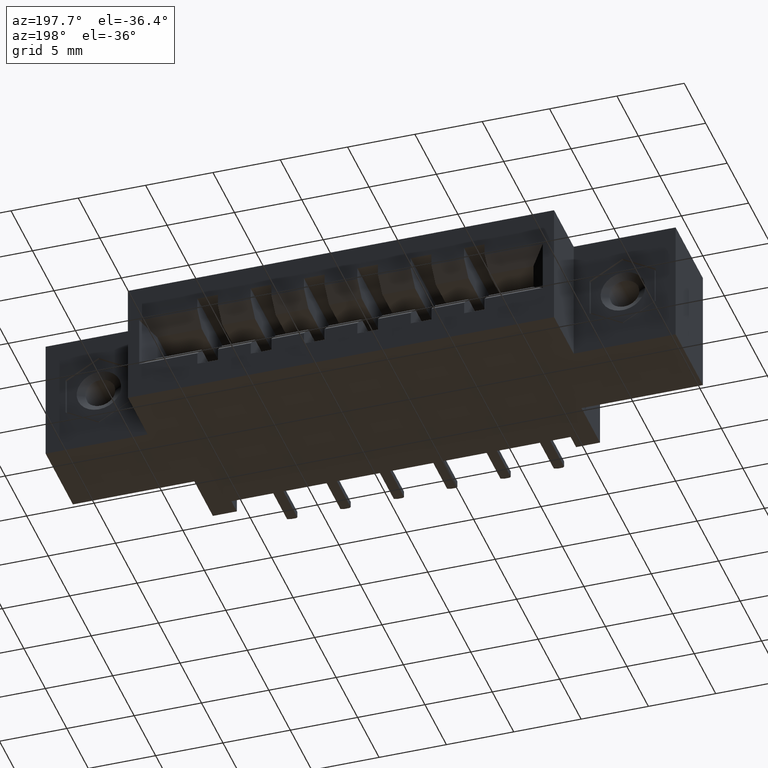
[diagram: clean part render]
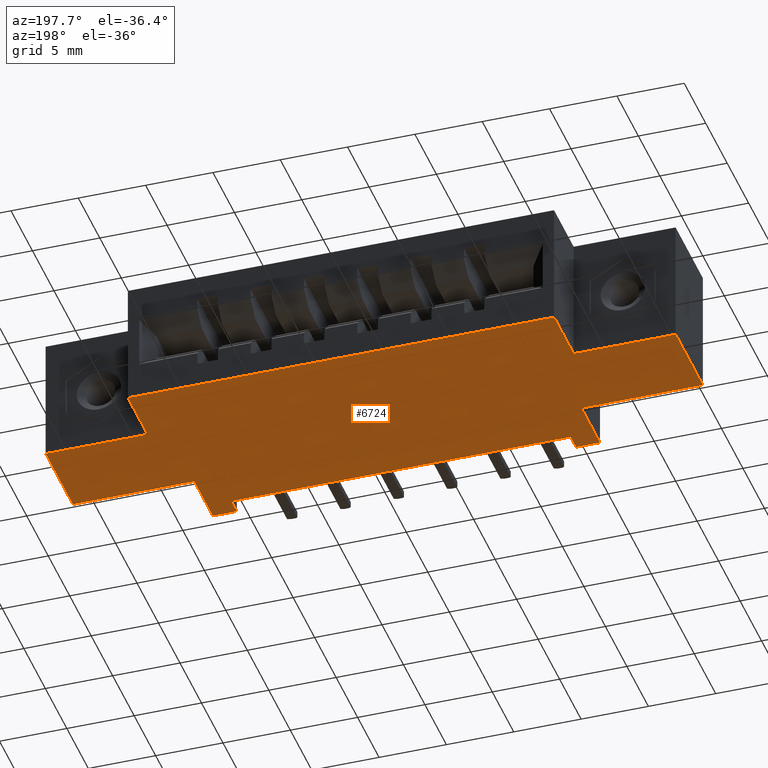
[diagram: same view with one face highlighted and labeled with its STEP entity id]
A machine part, auxiliary view. The second image highlights one B-rep face of the part: STEP entity #6724.
In plain terms, the highlighted planar face has unit normal (-0, 0, 1).
Its self-contained STEP definition (entity closure, byte-faithful):
#151 = VECTOR ( 'NONE', #7895, 39.37007874015748100 ) ;
#337 = EDGE_CURVE ( 'NONE', #8585, #6396, #6905, .T. ) ;
#508 = VECTOR ( 'NONE', #5805, 39.37007874015748100 ) ;
#598 = VERTEX_POINT ( 'NONE', #996 ) ;
#934 = LINE ( 'NONE', #4451, #9978 ) ;
#941 = ORIENTED_EDGE ( 'NONE', *, *, #8156, .F. ) ;
#996 = CARTESIAN_POINT ( 'NONE',  ( 1.544000000000000700, 0.5999999999999999800, -0.3699999999999999400 ) ) ;
#1090 = CARTESIAN_POINT ( 'NONE',  ( 1.487000000000000800, 0.1699999999999999800, -0.3699999999999998800 ) ) ;
#1165 = CARTESIAN_POINT ( 'NONE',  ( 0.0000000000000000000, 0.4199999999999999800, -0.3700000000000001600 ) ) ;
#1244 = VECTOR ( 'NONE', #4199, 39.37007874015748100 ) ;
#1310 = VECTOR ( 'NONE', #9368, 39.37007874015748100 ) ;
#1456 = FACE_OUTER_BOUND ( 'NONE', #3490, .T. ) ;
#1529 = CARTESIAN_POINT ( 'NONE',  ( 0.4249999999999999900, 0.05000000000000000300, -0.3700000000000000000 ) ) ;
#1551 = DIRECTION ( 'NONE',  ( -0.0000000000000000000, -1.000000000000000000, -0.0000000000000000000 ) ) ;
#1594 = ORIENTED_EDGE ( 'NONE', *, *, #7121, .T. ) ;
#1627 = CARTESIAN_POINT ( 'NONE',  ( 0.2980000000000001000, 0.4199999999999999800, -0.3700000000000001600 ) ) ;
#1687 = CARTESIAN_POINT ( 'NONE',  ( 1.842000000000000700, 0.4199999999999999800, -0.3700000000000000000 ) ) ;
#1736 = CARTESIAN_POINT ( 'NONE',  ( 0.0000000000000000000, 0.0000000000000000000, -0.3700000000000001600 ) ) ;
#1998 = CARTESIAN_POINT ( 'NONE',  ( 1.417000000000000700, 0.0000000000000000000, -0.3700000000000000000 ) ) ;
#2000 = VECTOR ( 'NONE', #9936, 39.37007874015748100 ) ;
#2109 = DIRECTION ( 'NONE',  ( -1.000000000000000000, -0.0000000000000000000, -7.415439722215695600E-017 ) ) ;
#2113 = ORIENTED_EDGE ( 'NONE', *, *, #4045, .T. ) ;
#2127 = CARTESIAN_POINT ( 'NONE',  ( 0.4249999999999999900, 0.05000000000000000300, -0.3700000000000000000 ) ) ;
#2281 = CARTESIAN_POINT ( 'NONE',  ( 1.487000000000000800, 0.1699999999999999800, -0.3699999999999998800 ) ) ;
#2471 = LINE ( 'NONE', #3568, #1310 ) ;
#2583 = CARTESIAN_POINT ( 'NONE',  ( 0.2980000000000001000, 0.4199999999999999800, -0.3700000000000001600 ) ) ;
#2655 = VERTEX_POINT ( 'NONE', #1998 ) ;
#2659 = VERTEX_POINT ( 'NONE', #7762 ) ;
#2708 = CARTESIAN_POINT ( 'NONE',  ( 0.0000000000000000000, 0.5999999999999999800, -0.3700000000000001600 ) ) ;
#2727 = VECTOR ( 'NONE', #9942, 39.37007874015748100 ) ;
#2804 = VECTOR ( 'NONE', #3832, 39.37007874015748100 ) ;
#2879 = VERTEX_POINT ( 'NONE', #7220 ) ;
#3041 = EDGE_CURVE ( 'NONE', #5185, #6480, #6333, .T. ) ;
#3103 = LINE ( 'NONE', #5676, #9220 ) ;
#3264 = CARTESIAN_POINT ( 'NONE',  ( 0.4249999999999999900, 0.0000000000000000000, -0.3700000000000000000 ) ) ;
#3295 = EDGE_CURVE ( 'NONE', #3300, #5185, #5308, .T. ) ;
#3300 = VERTEX_POINT ( 'NONE', #2127 ) ;
#3302 = LINE ( 'NONE', #1529, #2804 ) ;
#3368 = VECTOR ( 'NONE', #10201, 39.37007874015748100 ) ;
#3490 = EDGE_LOOP ( 'NONE', ( #10423, #9836, #10408, #6441, #6254, #6169, #3774, #941, #10214, #4534, #7854, #2113, #4872, #8868, #7497, #1594 ) ) ;
#3568 = CARTESIAN_POINT ( 'NONE',  ( 0.3550000000000000400, 0.1699999999999999800, -0.3700000000000000000 ) ) ;
#3569 = DIRECTION ( 'NONE',  ( -0.0000000000000000000, -1.000000000000000000, -0.0000000000000000000 ) ) ;
#3607 = VERTEX_POINT ( 'NONE', #7648 ) ;
#3774 = ORIENTED_EDGE ( 'NONE', *, *, #3041, .T. ) ;
#3787 = DIRECTION ( 'NONE',  ( -0.0000000000000000000, -1.000000000000000000, -0.0000000000000000000 ) ) ;
#3832 = DIRECTION ( 'NONE',  ( 1.000000000000000000, 0.0000000000000000000, 0.0000000000000000000 ) ) ;
#3961 = CARTESIAN_POINT ( 'NONE',  ( 0.0000000000000000000, 0.1699999999999999800, -0.3700000000000001600 ) ) ;
#4045 = EDGE_CURVE ( 'NONE', #9459, #2879, #4411, .T. ) ;
#4199 = DIRECTION ( 'NONE',  ( -1.000000000000000000, -0.0000000000000000000, -7.415439722215695600E-017 ) ) ;
#4218 = EDGE_CURVE ( 'NONE', #5695, #2655, #9259, .T. ) ;
#4328 = CARTESIAN_POINT ( 'NONE',  ( 0.3550000000000000400, 0.1699999999999999800, -0.3700000000000000000 ) ) ;
#4411 = LINE ( 'NONE', #2583, #2000 ) ;
#4433 = VECTOR ( 'NONE', #3787, 39.37007874015748100 ) ;
#4435 = VERTEX_POINT ( 'NONE', #8910 ) ;
#4451 = CARTESIAN_POINT ( 'NONE',  ( 0.0000000000000000000, 0.0000000000000000000, -0.3700000000000001600 ) ) ;
#4534 = ORIENTED_EDGE ( 'NONE', *, *, #7587, .F. ) ;
#4609 = CARTESIAN_POINT ( 'NONE',  ( 0.0000000000000000000, 0.5999999999999999800, -0.3700000000000001600 ) ) ;
#4872 = ORIENTED_EDGE ( 'NONE', *, *, #8468, .F. ) ;
#5185 = VERTEX_POINT ( 'NONE', #3264 ) ;
#5269 = CARTESIAN_POINT ( 'NONE',  ( 0.4249999999999999900, 0.05000000000000000300, -0.3700000000000000000 ) ) ;
#5308 = LINE ( 'NONE', #5269, #4433 ) ;
#5630 = LINE ( 'NONE', #10333, #9457 ) ;
#5650 = EDGE_CURVE ( 'NONE', #2659, #598, #5630, .T. ) ;
#5651 = CARTESIAN_POINT ( 'NONE',  ( 0.3550000000000000400, 0.0000000000000000000, -0.3700000000000001600 ) ) ;
#5676 = CARTESIAN_POINT ( 'NONE',  ( 1.842000000000000700, 0.5999999999999999800, -0.3700000000000000000 ) ) ;
#5695 = VERTEX_POINT ( 'NONE', #10441 ) ;
#5805 = DIRECTION ( 'NONE',  ( -1.000000000000000000, 0.0000000000000000000, 2.291818786631094000E-016 ) ) ;
#6169 = ORIENTED_EDGE ( 'NONE', *, *, #3295, .T. ) ;
#6254 = ORIENTED_EDGE ( 'NONE', *, *, #10506, .F. ) ;
#6276 = LINE ( 'NONE', #7222, #2727 ) ;
#6333 = LINE ( 'NONE', #1736, #1244 ) ;
#6396 = VERTEX_POINT ( 'NONE', #7839 ) ;
#6397 = LINE ( 'NONE', #3961, #6532 ) ;
#6441 = ORIENTED_EDGE ( 'NONE', *, *, #4218, .F. ) ;
#6480 = VERTEX_POINT ( 'NONE', #5651 ) ;
#6514 = VECTOR ( 'NONE', #9812, 39.37007874015748100 ) ;
#6532 = VECTOR ( 'NONE', #10522, 39.37007874015748100 ) ;
#6724 = ADVANCED_FACE ( 'NONE', ( #1456 ), #9999, .F. ) ;
#6821 = EDGE_CURVE ( 'NONE', #6396, #2655, #934, .T. ) ;
#6826 = DIRECTION ( 'NONE',  ( -7.415439722215696900E-017, 0.0000000000000000000, 1.000000000000000000 ) ) ;
#6841 = EDGE_CURVE ( 'NONE', #9459, #10268, #9350, .T. ) ;
#6905 = LINE ( 'NONE', #2281, #151 ) ;
#7074 = EDGE_CURVE ( 'NONE', #4435, #8631, #6397, .T. ) ;
#7121 = EDGE_CURVE ( 'NONE', #9487, #3607, #3103, .T. ) ;
#7150 = AXIS2_PLACEMENT_3D ( 'NONE', #2708, #6826, #7545 ) ;
#7220 = CARTESIAN_POINT ( 'NONE',  ( 0.2980000000000001000, 0.5999999999999999800, -0.3700000000000001600 ) ) ;
#7222 = CARTESIAN_POINT ( 'NONE',  ( 1.842000000000000700, 0.1699999999999999800, -0.3699999999999998300 ) ) ;
#7250 = EDGE_CURVE ( 'NONE', #8585, #3607, #6276, .T. ) ;
#7497 = ORIENTED_EDGE ( 'NONE', *, *, #9418, .F. ) ;
#7545 = DIRECTION ( 'NONE',  ( 1.000000000000000000, 0.0000000000000000000, 7.415439722215696900E-017 ) ) ;
#7587 = EDGE_CURVE ( 'NONE', #10268, #4435, #9966, .T. ) ;
#7648 = CARTESIAN_POINT ( 'NONE',  ( 1.842000000000000700, 0.1699999999999999800, -0.3699999999999998300 ) ) ;
#7762 = CARTESIAN_POINT ( 'NONE',  ( 1.544000000000000700, 0.4199999999999999800, -0.3699999999999999400 ) ) ;
#7839 = CARTESIAN_POINT ( 'NONE',  ( 1.487000000000000800, 0.0000000000000000000, -0.3699999999999998800 ) ) ;
#7854 = ORIENTED_EDGE ( 'NONE', *, *, #6841, .F. ) ;
#7887 = DIRECTION ( 'NONE',  ( -0.0000000000000000000, -1.000000000000000000, -0.0000000000000000000 ) ) ;
#7895 = DIRECTION ( 'NONE',  ( -0.0000000000000000000, -1.000000000000000000, -0.0000000000000000000 ) ) ;
#7917 = DIRECTION ( 'NONE',  ( -0.0000000000000000000, 1.000000000000000000, -0.0000000000000000000 ) ) ;
#8156 = EDGE_CURVE ( 'NONE', #8631, #6480, #2471, .T. ) ;
#8175 = CARTESIAN_POINT ( 'NONE',  ( 0.0000000000000000000, 0.5999999999999999800, -0.3700000000000001600 ) ) ;
#8468 = EDGE_CURVE ( 'NONE', #598, #2879, #8694, .T. ) ;
#8585 = VERTEX_POINT ( 'NONE', #1090 ) ;
#8615 = VECTOR ( 'NONE', #3569, 39.37007874015748100 ) ;
#8631 = VERTEX_POINT ( 'NONE', #4328 ) ;
#8694 = LINE ( 'NONE', #8175, #6514 ) ;
#8868 = ORIENTED_EDGE ( 'NONE', *, *, #5650, .F. ) ;
#8910 = CARTESIAN_POINT ( 'NONE',  ( 0.0000000000000000000, 0.1699999999999999800, -0.3700000000000001600 ) ) ;
#8926 = LINE ( 'NONE', #1687, #508 ) ;
#9192 = CARTESIAN_POINT ( 'NONE',  ( 1.842000000000000700, 0.4200000000000000400, -0.3700000000000000000 ) ) ;
#9220 = VECTOR ( 'NONE', #1551, 39.37007874015748100 ) ;
#9230 = CARTESIAN_POINT ( 'NONE',  ( 1.417000000000000700, 0.05000000000000000300, -0.3700000000000000000 ) ) ;
#9259 = LINE ( 'NONE', #9230, #8615 ) ;
#9350 = LINE ( 'NONE', #1165, #3368 ) ;
#9368 = DIRECTION ( 'NONE',  ( -0.0000000000000000000, -1.000000000000000000, -0.0000000000000000000 ) ) ;
#9418 = EDGE_CURVE ( 'NONE', #9487, #2659, #8926, .T. ) ;
#9457 = VECTOR ( 'NONE', #7917, 39.37007874015748100 ) ;
#9459 = VERTEX_POINT ( 'NONE', #1627 ) ;
#9487 = VERTEX_POINT ( 'NONE', #9192 ) ;
#9734 = VECTOR ( 'NONE', #7887, 39.37007874015748100 ) ;
#9812 = DIRECTION ( 'NONE',  ( -1.000000000000000000, -0.0000000000000000000, -7.415439722215695600E-017 ) ) ;
#9836 = ORIENTED_EDGE ( 'NONE', *, *, #337, .T. ) ;
#9936 = DIRECTION ( 'NONE',  ( -0.0000000000000000000, 1.000000000000000000, -0.0000000000000000000 ) ) ;
#9942 = DIRECTION ( 'NONE',  ( 1.000000000000000000, -0.0000000000000000000, 1.923836615256523900E-016 ) ) ;
#9966 = LINE ( 'NONE', #4609, #9734 ) ;
#9978 = VECTOR ( 'NONE', #2109, 39.37007874015748100 ) ;
#9999 = PLANE ( 'NONE',  #7150 ) ;
#10201 = DIRECTION ( 'NONE',  ( -1.000000000000000000, -0.0000000000000000000, -0.0000000000000000000 ) ) ;
#10214 = ORIENTED_EDGE ( 'NONE', *, *, #7074, .F. ) ;
#10244 = CARTESIAN_POINT ( 'NONE',  ( 0.0000000000000000000, 0.4199999999999999800, -0.3700000000000001600 ) ) ;
#10268 = VERTEX_POINT ( 'NONE', #10244 ) ;
#10333 = CARTESIAN_POINT ( 'NONE',  ( 1.544000000000000700, 0.4199999999999999800, -0.3699999999999999400 ) ) ;
#10408 = ORIENTED_EDGE ( 'NONE', *, *, #6821, .T. ) ;
#10423 = ORIENTED_EDGE ( 'NONE', *, *, #7250, .F. ) ;
#10441 = CARTESIAN_POINT ( 'NONE',  ( 1.417000000000000700, 0.05000000000000000300, -0.3700000000000000000 ) ) ;
#10506 = EDGE_CURVE ( 'NONE', #3300, #5695, #3302, .T. ) ;
#10522 = DIRECTION ( 'NONE',  ( 1.000000000000000000, 0.0000000000000000000, 3.847673230513046400E-016 ) ) ;